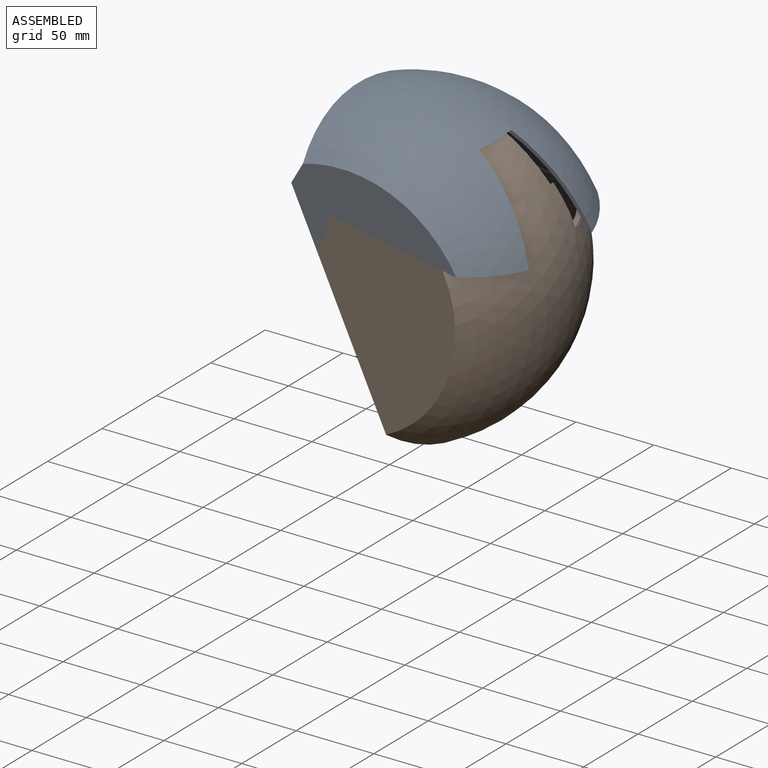
[diagram: assembled view]
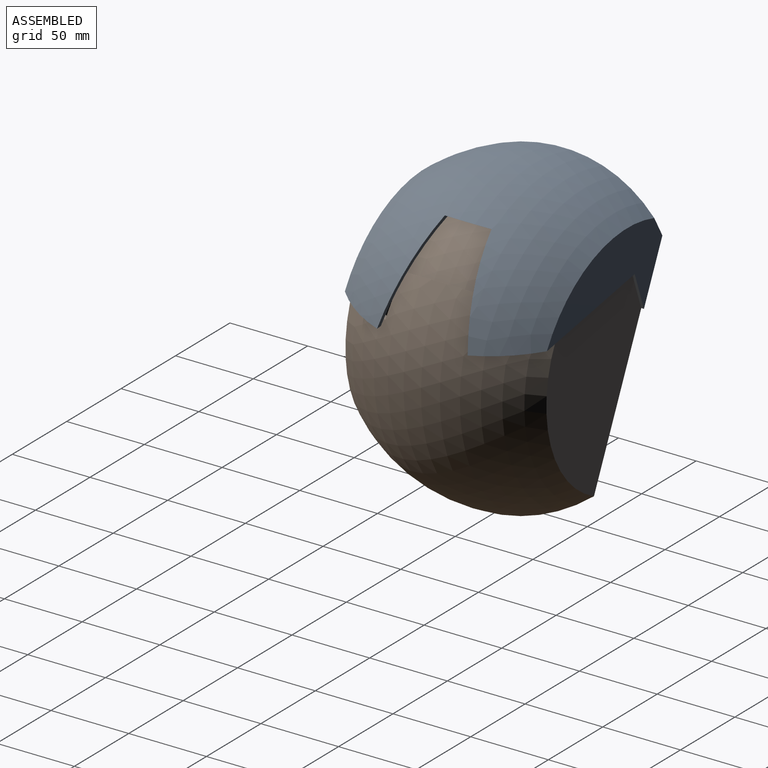
[diagram: assembled view, second angle]
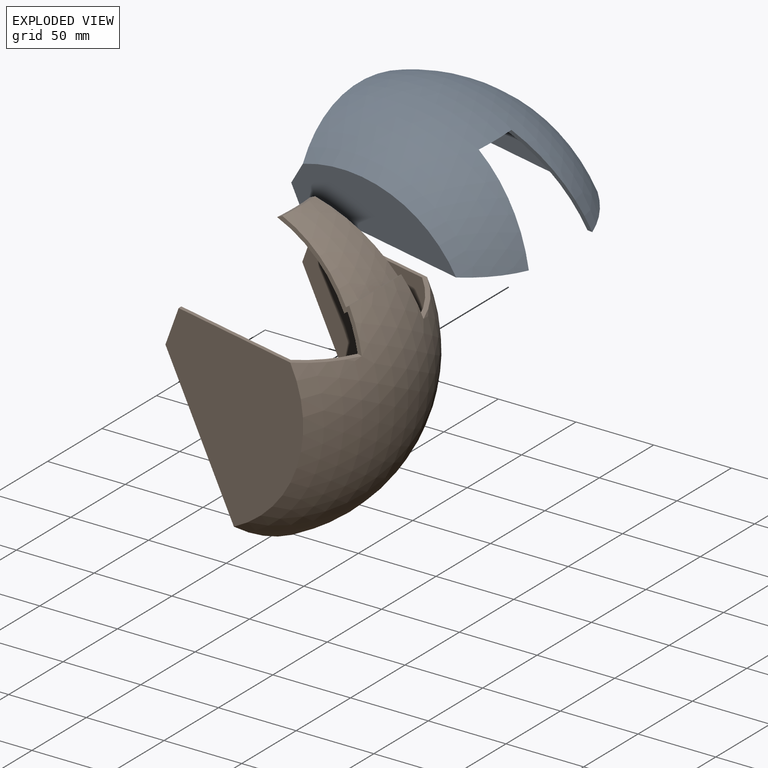
[diagram: exploded view]
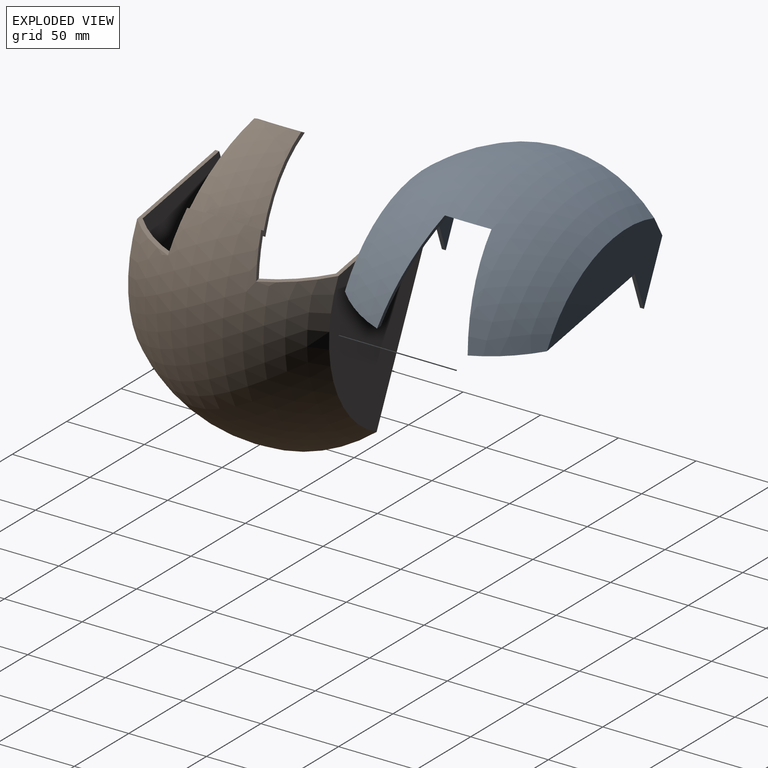
[diagram: exploded view, second angle]
ASSEMBLY  parts=2 mates=3
PART A: 18 faces, bbox 107x112.9x130 mm
  f0: plane 40x2.5mm, normal (-1,0,0), area 100mm2, adj f3,f8,f11,f17
  f1: plane 17.68x17.68mm, normal (0.71,-0.71,0), area 62.5mm2, adj f5,f7,f9,f16
  f2: plane 12.29x8.6mm, normal (-0.57,0.82,0), area 39mm2, adj f5,f7,f10,f15,f16
  f3: plane 17.68x17.68mm, normal (0.71,-0.71,0), area 62.5mm2, adj f0,f6,f8,f17
  f4: sphere r=107mm, area 17495.7mm2, adj f6,f7,f8,f9,f10,f12,f13,f14
  f5: plane 40x2.5mm, normal (-1,0,0), area 100mm2, adj f1,f2,f7,f16
  f6: plane 85.08x59.57mm, normal (-0.57,-0.82,0), area 322.1mm2, adj f3,f4,f8,f13,f15,f17
  f7: plane 84.77x77.91mm, normal (0,0,1), area 2837.4mm2, adj f1,f2,f4,f5,f9
  f8: plane 84.77x77.91mm, normal (0,0,-1), area 2837.4mm2, adj f0,f3,f4,f6,f11
  f9: plane 85.08x59.57mm, normal (-0.57,-0.82,0), area 322.1mm2, adj f1,f4,f7,f14,f15,f16
  f10: plane 130x22.19mm, normal (-1,0,0), area 339.6mm2, adj f2,f4,f11,f15
  f11: plane 12.29x8.6mm, normal (-0.57,0.82,0), area 39mm2, adj f0,f8,f10,f15,f17
  f12: plane 30x4.36mm, normal (0,-1,0), area 91.5mm2, adj f4,f13,f14,f15
  f13: plane 66.39x19.26mm, normal (0,-0.21,0.98), area 181.7mm2, adj f4,f6,f12,f15
  f14: plane 66.39x19.26mm, normal (0,-0.21,-0.98), area 181.7mm2, adj f4,f9,f12,f15
  f15: sphere r=104.5mm, area 16115.5mm2, adj f2,f6,f9,f10,f11,f12,f13,f14
  f16: plane 83.45x75.93mm, normal (0,0,-1), area 2695.1mm2, adj f1,f2,f5,f9,f15
  f17: plane 83.45x75.93mm, normal (0,0,1), area 2695.1mm2, adj f0,f3,f6,f11,f15
PART B: 18 faces, bbox 170.9x128.3x100 mm
  f0: plane 128.28x126.52mm, normal (0,0,-1), area 854.1mm2, adj f1,f7,f8,f9,f10,f13,f14,f15
  f1: plane 17.68x17.68mm, normal (-0.71,0,-0.71), area 62.5mm2, adj f0,f6,f8,f14
  f2: plane 80.19x34.03mm, normal (-0.16,0.99,0), area 237mm2, adj f4,f5,f10,f11,f12,f15,f16,f17
  f3: plane 80.19x34.03mm, normal (-0.16,-0.99,0), area 237mm2, adj f4,f6,f10,f11,f12,f15,f16,f17
  f4: plane 30x5.42mm, normal (-1,0,0), area 110.3mm2, adj f2,f3,f11,f16
  f5: plane 77.67x54.39mm, normal (-0.82,0,0.57), area 296.9mm2, adj f2,f7,f9,f10,f13,f15
  f6: plane 77.67x54.39mm, normal (-0.82,0,0.57), area 294.4mm2, adj f1,f3,f8,f10,f14,f15
  f7: plane 120.19x75.99mm, normal (0,1,0), area 6547.3mm2, adj f0,f5,f9,f10
  f8: plane 121.63x77.43mm, normal (0,-1,0), area 6724.9mm2, adj f0,f1,f6,f10
  f9: plane 17.68x17.68mm, normal (-0.71,0,-0.71), area 62.5mm2, adj f0,f5,f7,f13
  f10: sphere r=100mm, area 20639.4mm2, adj f0,f2,f3,f5,f6,f7,f8,f12
  f11: sphere r=97.5mm, area 2371mm2, adj f2,f3,f4,f12
  f12: plane 47.86x5.4mm, normal (-0.98,0,-0.17), area 120.7mm2, adj f2,f3,f10,f11
  f13: plane 119.03x74.83mm, normal (0,-1,0), area 6405.4mm2, adj f0,f5,f9,f15
  f14: plane 120.43x76.24mm, normal (0,1,0), area 6577.3mm2, adj f0,f1,f6,f15
  f15: sphere r=97.5mm, area 19359.3mm2, adj f0,f2,f3,f5,f6,f13,f14,f17
  f16: sphere r=95mm, area 2537.8mm2, adj f2,f3,f4,f17
  f17: plane 48.84x5.61mm, normal (0.98,0,0.17), area 123.3mm2, adj f2,f3,f15,f16
PLACE A rot(axis=(0.95,-0.21,0.21),92.7deg) t=(-368,3.36,-159.77)mm
PLACE B rot(axis=(0,1,0),64.9deg) t=(-371.81,1.64,-151.63)mm
MATE planar B.f7 <-> A.f8  axis (0,1,0) through (-335.95,66.64,-154.15)mm
MATE planar A.f5 <-> B.f0  axis (-0.91,0,-0.42) through (-383.05,-60.39,-127.62)mm
MATE planar B.f8 <-> A.f7  axis (0,-1,0) through (-335.18,-61.64,-154.67)mm
